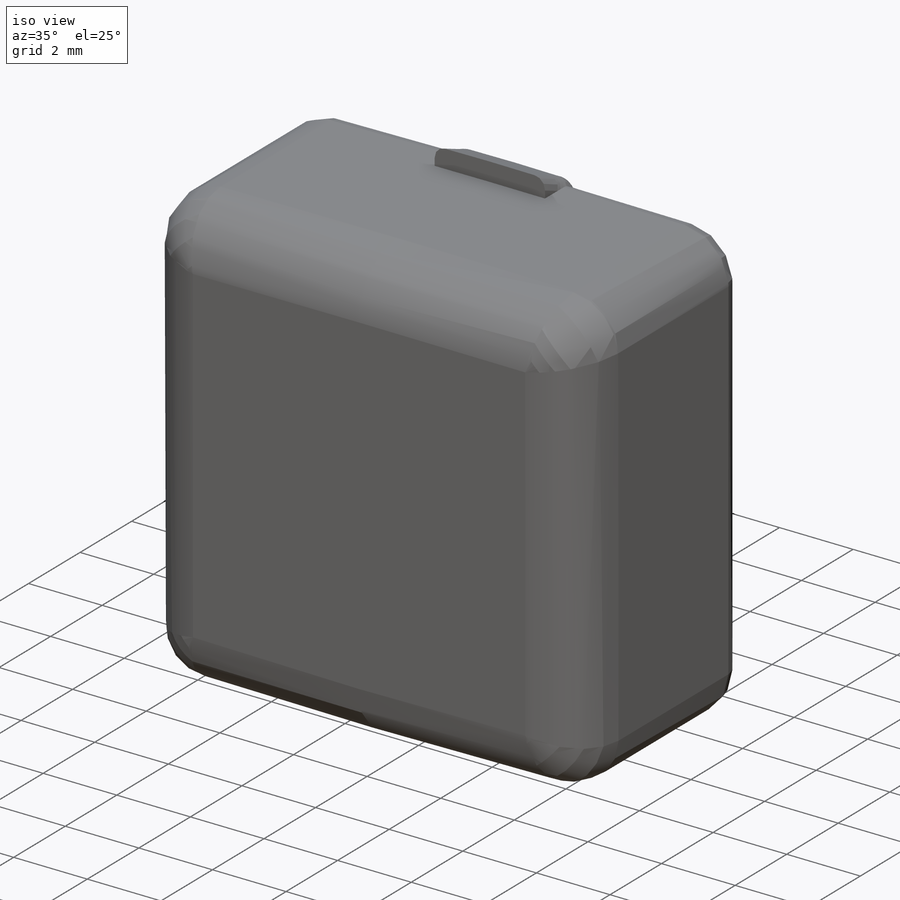
[diagram: iso view]
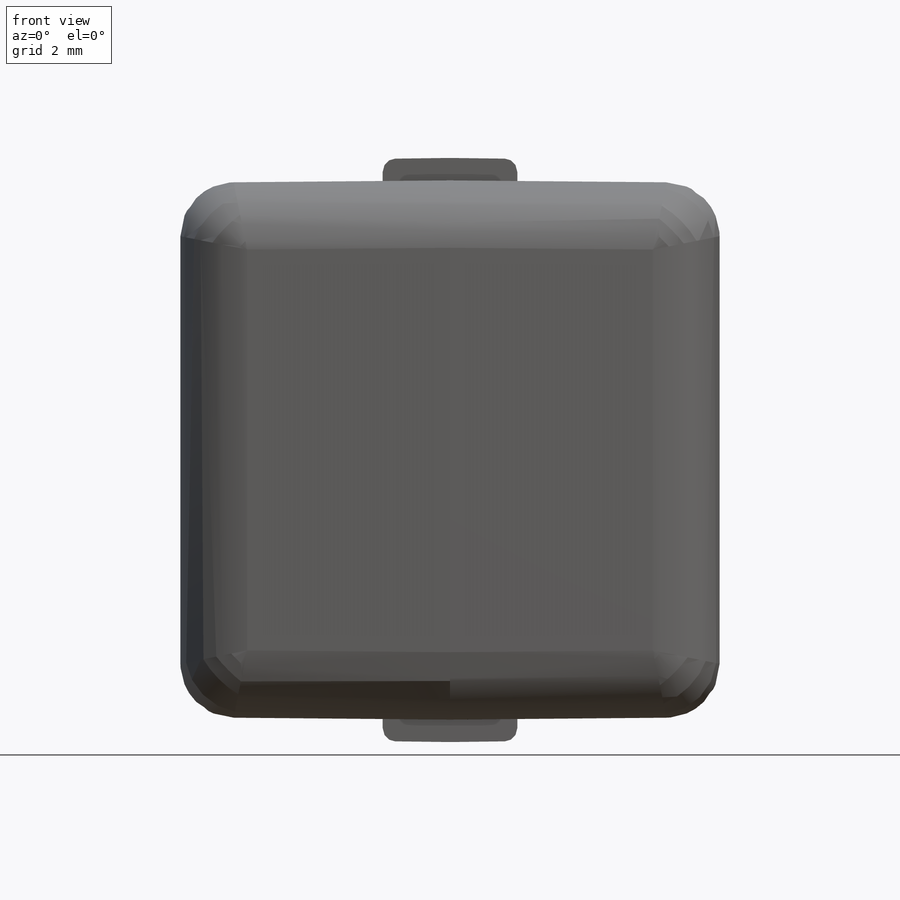
[diagram: front view]
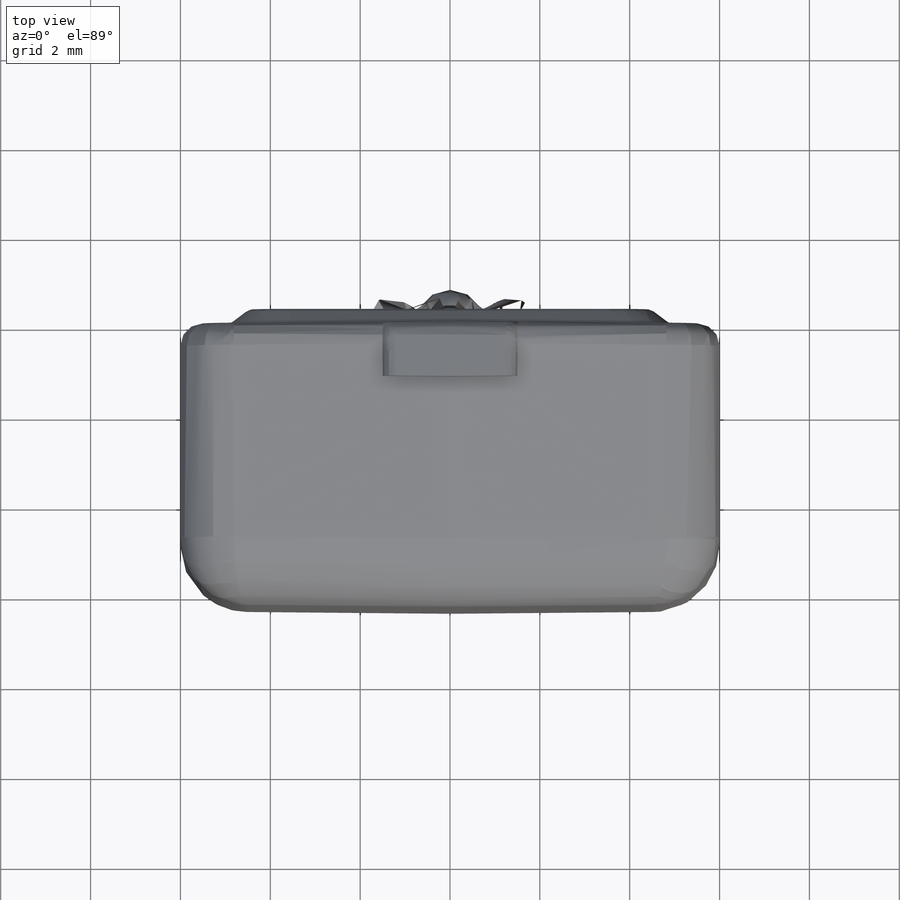
[diagram: top view]
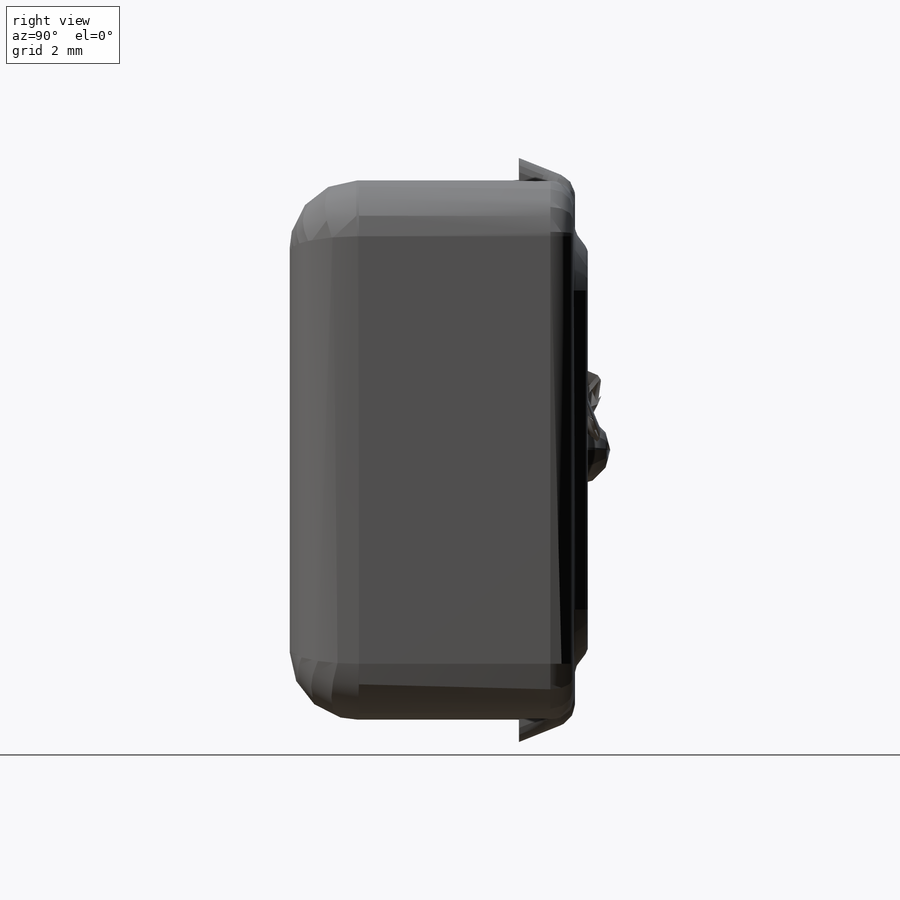
[diagram: right view]
SOLIDWORKS PART (.sldprt)
format: sldprt  version: not decoded by parser v0  size: 672,256 bytes
history: native  units: mm
features: fillet x7, sketch x5, extrude x3, mirror x3, material x1, sweep x1 (+11 scaffold rows collapsed)
feature tree (31):
  scaffold x11  (default folders/planes/origin — collapsed)
  material  "ABS"
  sketch  "Sketch1"  dims[c1.D3=1.0mm c1.D4=1.2mm c1.D5=1.0mm c1.D6=0.5mm c2.D3=1.2mm c2.D1=1.5mm c2.D2=11.8mm c2.D7=2.25mm c3.D2=12.0mm c3.D1=8.1mm]
  extrude  "Extrude1"  Depth=6.35mm
  sketch  "Sketch2"  dims[D1=0.0mm]
  extrude  "Extrude2"  Depth=1.5mm
  sketch  "Sketch3"  dims[c1.D4=1.778mm c1.D1=0.5mm c1.D2=1.25mm c2.D1=0.5mm c2.D2=1.25mm c2.D3=1.3mm c2.D5=0.75mm]
  extrude  "Extrude3"  Depth=3mm
  mirror  "Mirror1"
  sketch  "Sketch4"  dims[c1.D4=0.25mm c1.D5=1.778mm c1.D1=0.75mm c1.D2=0.3mm c2.D1=0.4mm c2.D3=0.4mm]
  sketch  "Sketch5"  dims[D1=0.0mm]
  sweep  "Sweep1"
  mirror  "Draft12"
  mirror  "Draft13"
  fillet  "Fillet2"  Radius=0.25mm
  fillet  "Fillet4"  Radius=1.2mm
  fillet  "Fillet5"  Radius=0.5mm
  fillet  "Fillet6"  Radius=0.5mm
  fillet  "Fillet7"  Radius=1.5mm
  fillet  "Fillet11"  Radius=0.28mm
  fillet  "Fillet12"  Radius=0.28mm
decode coverage: 15 of 19 modeling features carry decoded parameters
note: suppression state not decoded; provenance and decode notes live in map.json
